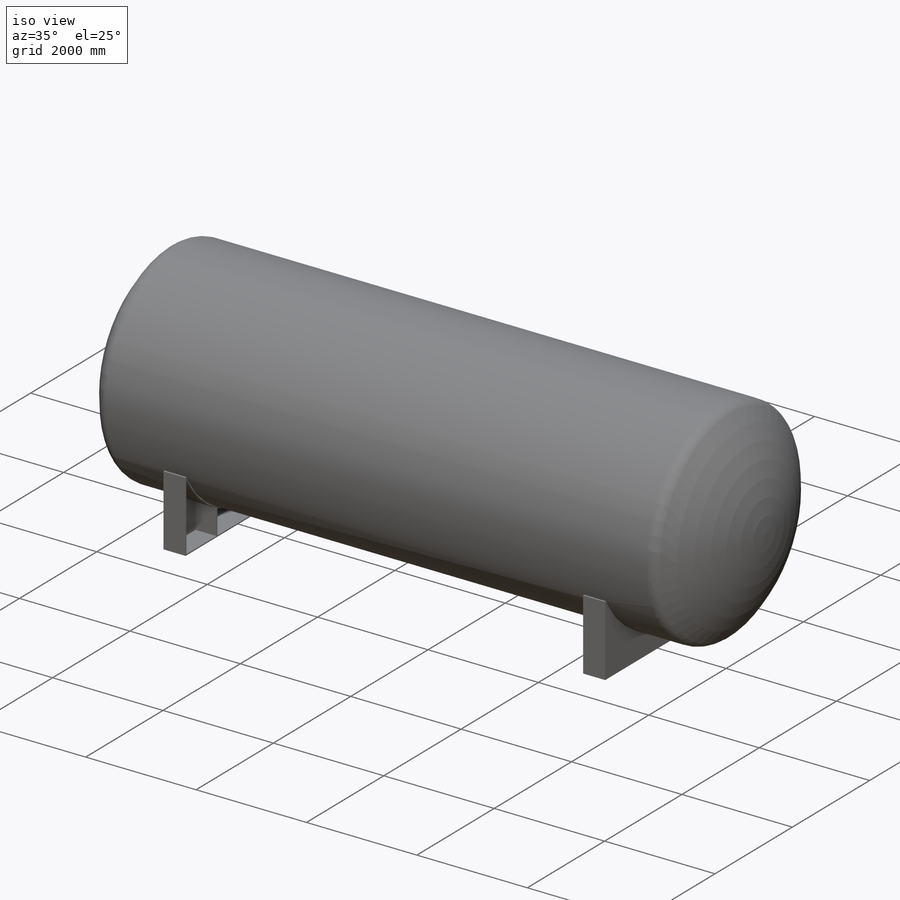
[diagram: iso view]
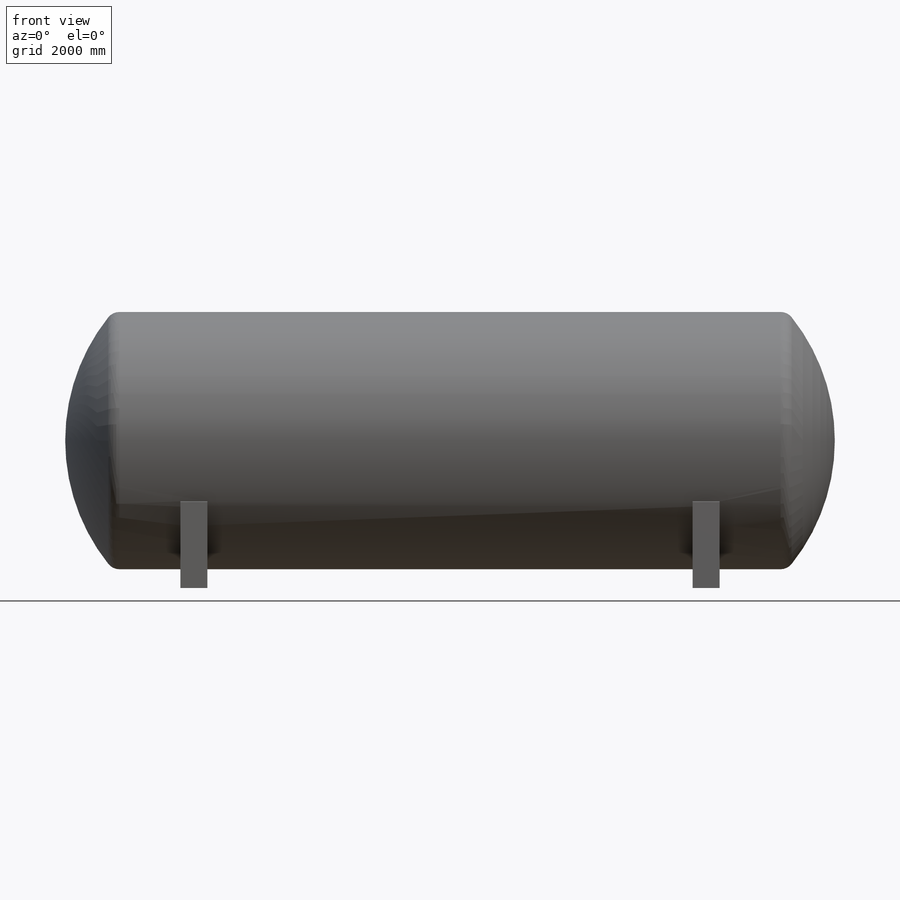
[diagram: front view]
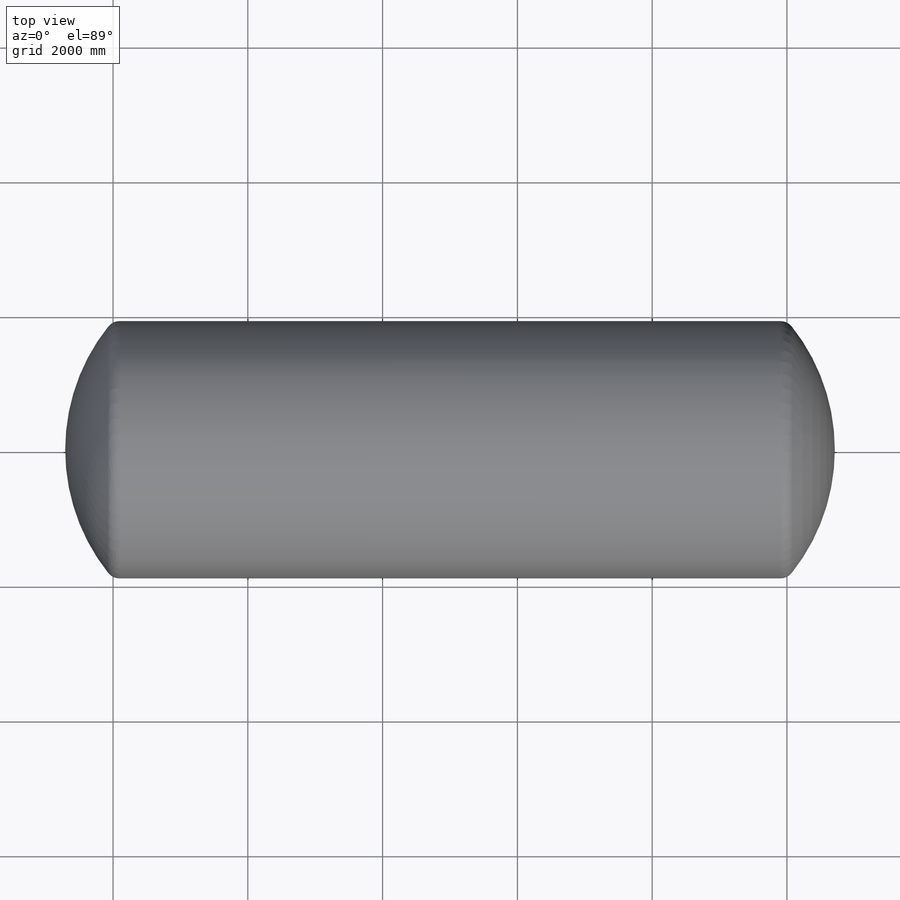
[diagram: top view]
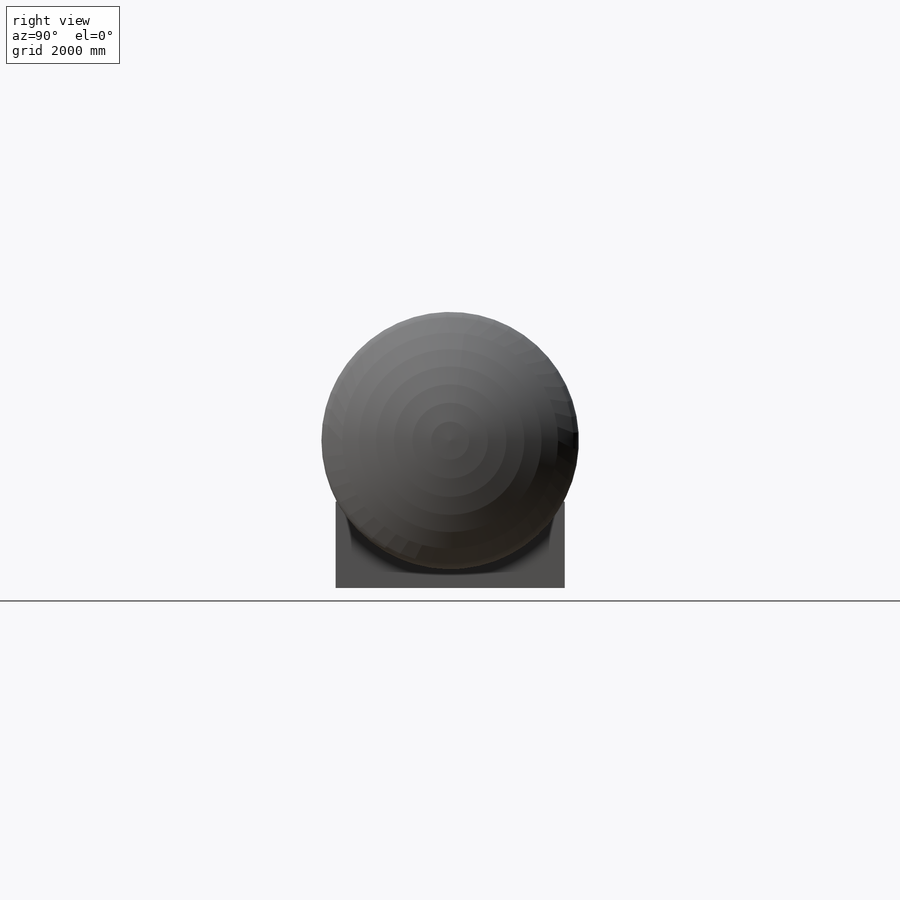
[diagram: right view]
SOLIDWORKS PART (.sldprt)
format: sldprt  version: not decoded by parser v0  size: 832,000 bytes
history: native  units: mm
features: sketch x7, extrude x6, plane x3, material x1 (+37 scaffold rows collapsed)
feature tree (54):
  scaffold x37  (default folders/planes/origin — collapsed)
  material  "AISI 1035 Steel (SS)"
  sketch  "Sketch1"  dims[c1.D5=200.0mm c1.D1=10700.0mm c1.D6=5000.0mm c1.D7=11400.0mm c1.D2=1900.0mm c1.D3=1900.0mm c1.D4=700.0mm c2.D2=20.0mm c2.D1=360.0deg c2.D3=10.0mm c2.D4=10.0mm c2.D7=0.0mm]
  plane  "Plane4"  Offset=5000mm
  plane  "Plane5"  Offset=4000mm
  sketch  "Sketch3"  dims[D1=1700.0mm D2=1700.0mm D3=18.0mm D4=18.0mm]
  extrude  "Boss-Extrude1"  Depth=400mm
  sketch  "Sketch4"  dims[c1.D2=~1278.503436mm c1.D1=1700.0mm c2.D2=1700.0mm c2.D3=260.0mm]
  extrude  "Boss-Extrude2"  Depth=20mm
  sketch  "Sketch5"  dims[D7=890.0mm D1=0.0mm D2=20.0mm D3=20.0mm D4=20.0mm D5=10.0mm D6=10.0mm D8=10.0mm D9=10.0mm]
  extrude  "Boss-Extrude3"  [1 undecoded]
  plane  "Plane6"  Offset=4000mm
  sketch  "Sketch6"  dims[D1=0.0mm D2=20.0mm]
  extrude  "Boss-Extrude4"  Depth=400mm
  sketch  "Sketch7"
  extrude  "Boss-Extrude5"  Depth=20mm
  sketch  "Sketch8"
  extrude  "Boss-Extrude6"  [1 undecoded]
decode coverage: 9 of 13 modeling features carry decoded parameters
note: ~ marks probable driven/reference dimensions
note: 2 parameter values undecoded
note: suppression state not decoded; provenance and decode notes live in map.json
